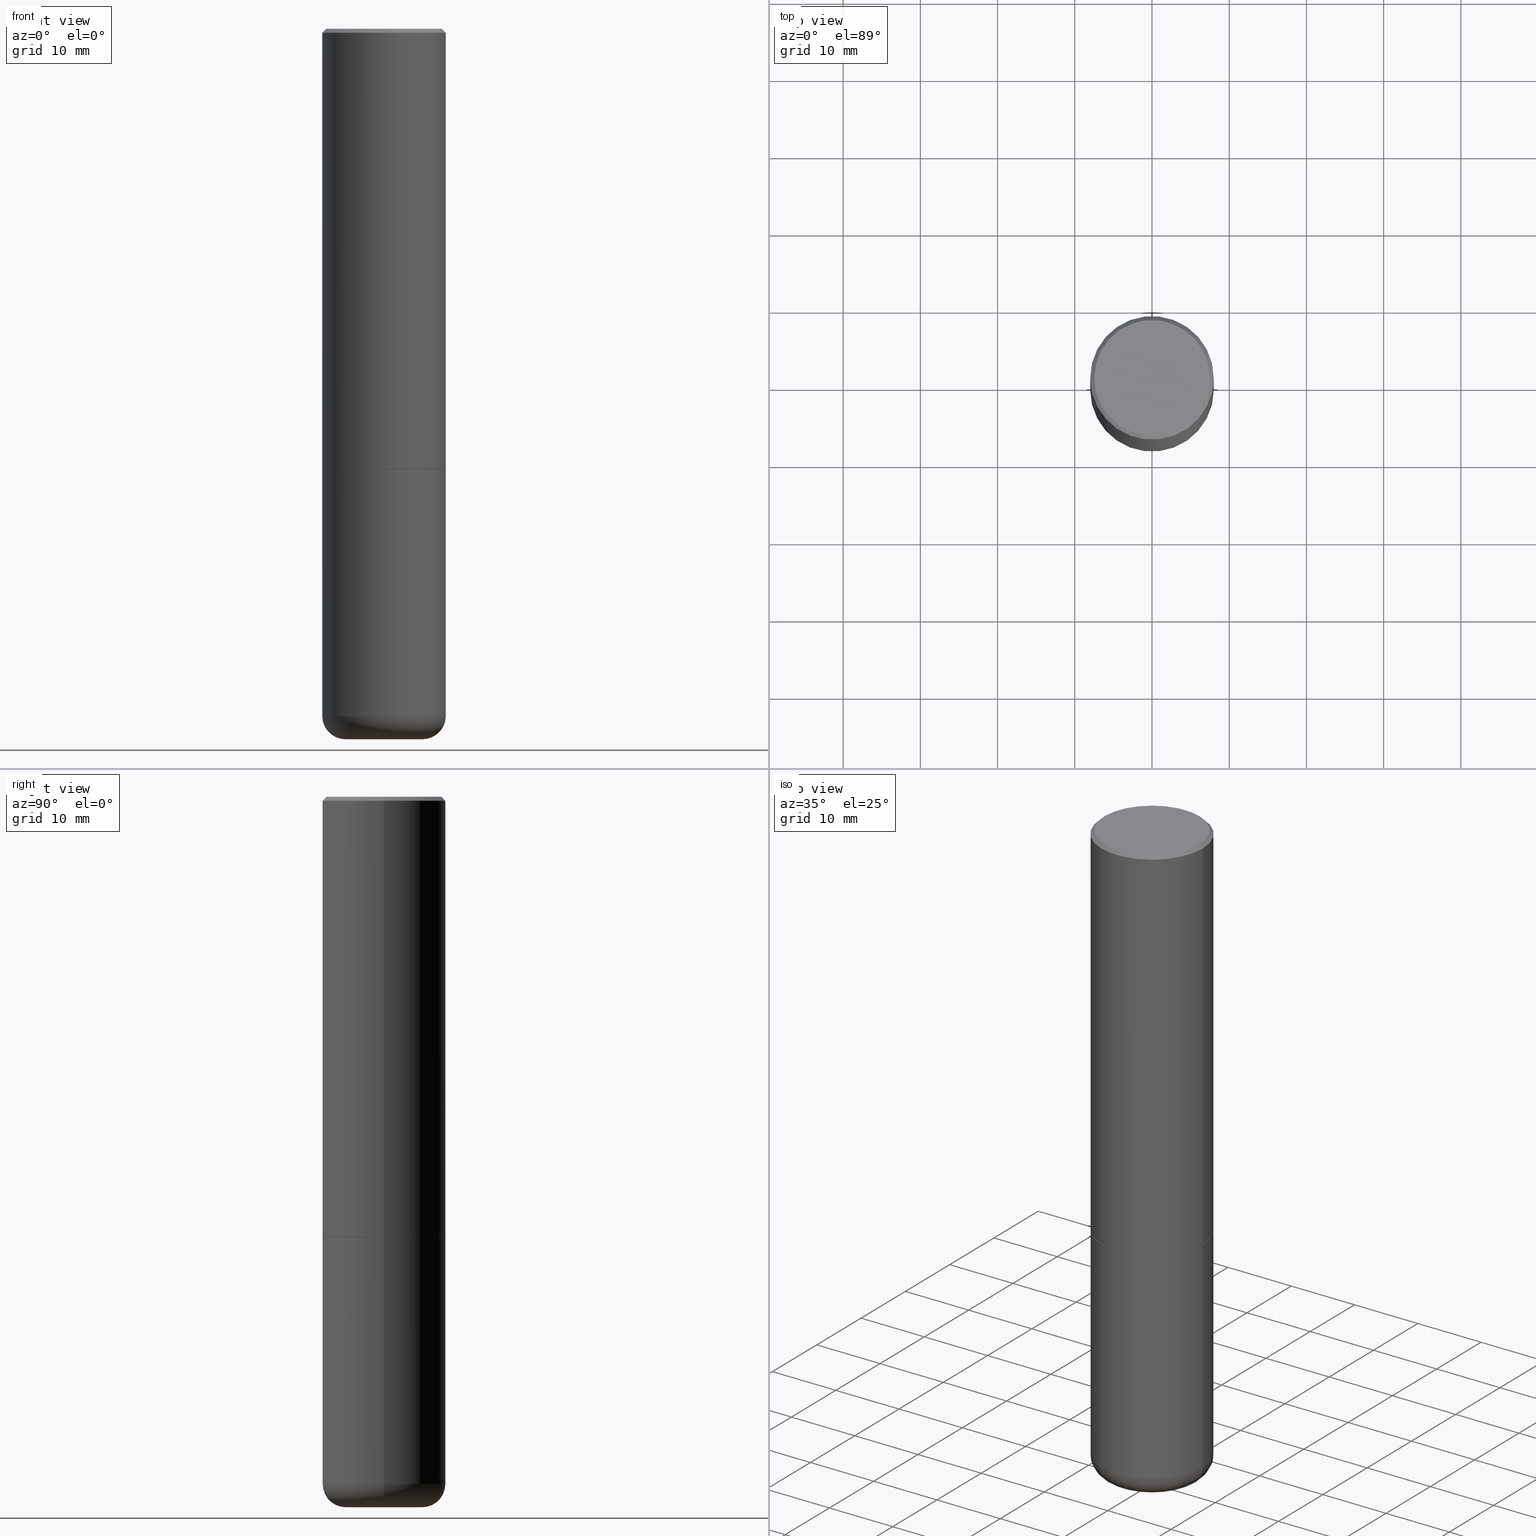
[diagram: canonical four-view strip — front | top / right | iso, engineering-drawing reading convention]
A machine part, canonical four-view strip (front | top / right | iso — engineering-drawing reading convention). The complete STEP part file that produces these views, byte-faithful:
ISO-10303-21;
HEADER;
FILE_DESCRIPTION (( 'STEP AP203' ),
    '1' );
FILE_NAME ('47037.STEP',
    '2024-03-05T13:49:01',
    ( '' ),
    ( '' ),
    'SwSTEP 2.0',
    'SolidWorks 2023',
    '' );
FILE_SCHEMA (( 'CONFIG_CONTROL_DESIGN' ));
ENDSEC;

DATA;
#1 = DIRECTION ( 'NONE',  ( -2.445468806185136597E-29, 3.491481338843145583E-15, 1.000000000000000000 ) ) ;
#2 = CC_DESIGN_DATE_AND_TIME_ASSIGNMENT ( #24, #348, ( #248 ) ) ;
#3 = APPROVAL_PERSON_ORGANIZATION ( #255, #86, #289 ) ;
#4 = VERTEX_POINT ( 'NONE', #196 ) ;
#5 = CC_DESIGN_PERSON_AND_ORGANIZATION_ASSIGNMENT ( #228, #197, ( #248 ) ) ;
#6 = AXIS2_PLACEMENT_3D ( 'NONE', #169, #200, #406 ) ;
#7 = PRODUCT_DEFINITION_FORMATION_WITH_SPECIFIED_SOURCE ( 'ANY', '', #140, .NOT_KNOWN. ) ;
#8 = PLANE ( 'NONE',  #97 ) ;
#9 = CARTESIAN_POINT ( 'NONE',  ( 0.3149500000000000077, -2.199284095337289871E-15, 1.535751875536930130E-29 ) ) ;
#10 = DIRECTION ( 'NONE',  ( 1.000000000000000000, -6.982962677686266711E-15, 4.876176775795936353E-29 ) ) ;
#11 = ORIENTED_EDGE ( 'NONE', *, *, #123, .F. ) ;
#12 = CLOSED_SHELL ( 'NONE', ( #138, #320, #334, #46, #198, #217 ) ) ;
#13 = CARTESIAN_POINT ( 'NONE',  ( -0.3149500000000001743, 2.237854346276436774E-15, -1.549218606675783237E-29 ) ) ;
#14 = CARTESIAN_POINT ( 'NONE',  ( 5.485186532273261485E-29, -7.831392643025175821E-15, -2.242999999999999883 ) ) ;
#15 = ORIENTED_EDGE ( 'NONE', *, *, #99, .F. ) ;
#16 = CARTESIAN_POINT ( 'NONE',  ( 5.487632001079445967E-29, -7.834884124364017250E-15, -2.243999999999999773 ) ) ;
#17 = DIRECTION ( 'NONE',  ( 2.445468806185136597E-29, -3.491481338843145583E-15, -1.000000000000000000 ) ) ;
#18 = CLOSED_SHELL ( 'NONE', ( #30, #111, #136, #116, #204, #38, #69, #143 ) ) ;
#19 = CARTESIAN_POINT ( 'NONE',  ( 5.487632001079445967E-29, -7.834884124364017250E-15, -2.243999999999999773 ) ) ;
#20 = CARTESIAN_POINT ( 'NONE',  ( 5.487632001079445967E-29, -7.834884124364017250E-15, -2.243999999999999773 ) ) ;
#21 = APPROVAL_DATE_TIME ( #287, #86 ) ;
#22 = ORIENTED_EDGE ( 'NONE', *, *, #330, .F. ) ;
#23 = CARTESIAN_POINT ( 'NONE',  ( 5.487632001079445967E-29, -7.834884124364017250E-15, -2.243999999999999773 ) ) ;
#24 = DATE_AND_TIME ( #319, #382 ) ;
#25 = EDGE_CURVE ( 'NONE', #179, #51, #277, .T. ) ;
#26 = DIRECTION ( 'NONE',  ( -2.445468806185136597E-29, 3.491481338843145583E-15, 1.000000000000000000 ) ) ;
#27 = VECTOR ( 'NONE', #187, 39.37007874015748143 ) ;
#28 = ORIENTED_EDGE ( 'NONE', *, *, #177, .T. ) ;
#29 = CARTESIAN_POINT ( 'NONE',  ( 0.3139500000000000068, -1.002718525702362111E-14, -2.243999999999999773 ) ) ;
#30 = ADVANCED_FACE ( 'NONE', ( #160 ), #360, .T. ) ;
#31 = DIRECTION ( 'NONE',  ( -2.445468806185136597E-29, 3.491481338843145583E-15, 1.000000000000000000 ) ) ;
#32 = CC_DESIGN_PERSON_AND_ORGANIZATION_ASSIGNMENT ( #370, #159, ( #7 ) ) ;
#33 = LENGTH_MEASURE_WITH_UNIT ( LENGTH_MEASURE( 0.02539999999999999897 ), #98 );
#34 = APPROVAL_ROLE ( '' ) ;
#35 = VECTOR ( 'NONE', #251, 39.37007874015748143 ) ;
#36 = ORIENTED_EDGE ( 'NONE', *, *, #273, .F. ) ;
#37 = ORIENTED_EDGE ( 'NONE', *, *, #296, .F. ) ;
#38 = ADVANCED_FACE ( 'NONE', ( #411 ), #347, .T. ) ;
#39 = CARTESIAN_POINT ( 'NONE',  ( 0.000000000000000000, 0.000000000000000000, 0.000000000000000000 ) ) ;
#40 = AXIS2_PLACEMENT_3D ( 'NONE', #324, #31, #318 ) ;
#41 = DIRECTION ( 'NONE',  ( 1.000000000000000000, -6.982962677686265922E-15, 4.876176775795935232E-29 ) ) ;
#42 = DIRECTION ( 'NONE',  ( 0.000000000000000000, 0.000000000000000000, 1.000000000000000000 ) ) ;
#43 = ORIENTED_EDGE ( 'NONE', *, *, #104, .F. ) ;
#44 = DIRECTION ( 'NONE',  ( 1.000000000000000000, -6.982962677686266711E-15, 0.000000000000000000 ) ) ;
#45 = CARTESIAN_POINT ( 'NONE',  ( 4.890937612370289799E-31, -6.982962677686315028E-17, -0.02000000000000006981 ) ) ;
#46 = ADVANCED_FACE ( 'NONE', ( #207 ), #327, .T. ) ;
#47 = DIRECTION ( 'NONE',  ( 1.000000000000000000, -6.982962677686267499E-15, 0.000000000000000000 ) ) ;
#48 = ORIENTED_EDGE ( 'NONE', *, *, #25, .F. ) ;
#49 = VECTOR ( 'NONE', #336, 39.37007874015748143 ) ;
#50 = CARTESIAN_POINT ( 'NONE',  ( -0.3149499999999998967, -9.995947116896063452E-15, -3.503899999999999793 ) ) ;
#51 = VERTEX_POINT ( 'NONE', #135 ) ;
#52 = ORIENTED_EDGE ( 'NONE', *, *, #297, .F. ) ;
#53 = ORIENTED_EDGE ( 'NONE', *, *, #188, .T. ) ;
#54 = AXIS2_PLACEMENT_3D ( 'NONE', #23, #1, #163 ) ;
#55 = EDGE_LOOP ( 'NONE', ( #331, #396, #205, #223 ) ) ;
#56 = PLANE ( 'NONE',  #388 ) ;
#57 = CARTESIAN_POINT ( 'NONE',  ( 8.568678149992099474E-29, -1.223380146317249786E-14, -3.503899999999999793 ) ) ;
#58 = VERTEX_POINT ( 'NONE', #269 ) ;
#59 = FACE_OUTER_BOUND ( 'NONE', #141, .T. ) ;
#60 = CIRCLE ( 'NONE', #257, 0.3149500000000000077 ) ;
#61 = VERTEX_POINT ( 'NONE', #385 ) ;
#62 = DIRECTION ( 'NONE',  ( 1.000000000000000000, -6.982962677686267499E-15, 4.874125435057324435E-29 ) ) ;
#63 = CIRCLE ( 'NONE', #132, 0.3149500000000002853 ) ;
#64 = CIRCLE ( 'NONE', #54, 0.3139500000000000068 ) ;
#65 = EDGE_LOOP ( 'NONE', ( #298, #232, #399, #37 ) ) ;
#66 = PLANE ( 'NONE',  #101 ) ;
#67 = APPROVAL_ROLE ( '' ) ;
#68 = PRODUCT_DEFINITION_SHAPE ( 'NONE', 'NONE',  #238 ) ;
#69 = ADVANCED_FACE ( 'NONE', ( #102 ), #66, .F. ) ;
#70 = AXIS2_PLACEMENT_3D ( 'NONE', #192, #312, #286 ) ;
#71 = CARTESIAN_POINT ( 'NONE',  ( 0.3149500000000001743, -2.199284095337290660E-15, 1.535751875536930690E-29 ) ) ;
#72 = CARTESIAN_POINT ( 'NONE',  ( 4.890937612370289799E-31, -6.982962677686315028E-17, -0.02000000000000006981 ) ) ;
#73 = ADVANCED_BREP_SHAPE_REPRESENTATION ( '47037', ( #408, #134, #285 ), #258 ) ;
#74 = ORIENTED_EDGE ( 'NONE', *, *, #297, .T. ) ;
#75 = DIRECTION ( 'NONE',  ( 2.438088387897960049E-29, -3.491481338843145188E-15, -1.000000000000000000 ) ) ;
#76 = LINE ( 'NONE', #84, #35 ) ;
#77 = CARTESIAN_POINT ( 'NONE',  ( 0.3139500000000000068, -1.002718525702362111E-14, -2.243999999999999773 ) ) ;
#78 = DIRECTION ( 'NONE',  ( -2.445468806185136597E-29, 3.491481338843145583E-15, 1.000000000000000000 ) ) ;
#79 = VECTOR ( 'NONE', #114, 39.37007874015748143 ) ;
#80 = ORIENTED_EDGE ( 'NONE', *, *, #177, .F. ) ;
#81 = CIRCLE ( 'NONE', #292, 0.3149500000000000077 ) ;
#82 = DIRECTION ( 'NONE',  ( 1.000000000000000000, -6.982962677686265922E-15, 4.876176775795935793E-29 ) ) ;
#83 = ORIENTED_EDGE ( 'NONE', *, *, #267, .F. ) ;
#84 = CARTESIAN_POINT ( 'NONE',  ( -0.3149500000000000077, 2.129454468560426573E-15, -0.02000000000000006981 ) ) ;
#85 = EDGE_LOOP ( 'NONE', ( #392, #164 ) ) ;
#86 = APPROVAL ( #377, 'UNSPECIFIED' ) ;
#87 = LOCAL_TIME ( 8, 49, 1.000000000000000000, #231 ) ;
#88 = EDGE_CURVE ( 'NONE', #51, #202, #172, .T. ) ;
#89 = PERSON_AND_ORGANIZATION_ROLE ( 'creator' ) ;
#90 = ORIENTED_EDGE ( 'NONE', *, *, #273, .T. ) ;
#91 = FACE_OUTER_BOUND ( 'NONE', #349, .T. ) ;
#92 = DIRECTION ( 'NONE',  ( 1.000000000000000000, -6.982962677686269866E-15, 4.883557194083114022E-29 ) ) ;
#93 = SHAPE_DEFINITION_REPRESENTATION ( #68, #73 ) ;
#94 = PRODUCT_RELATED_PRODUCT_CATEGORY ( 'detail', '', ( #140 ) ) ;
#95 = ORIENTED_EDGE ( 'NONE', *, *, #304, .T. ) ;
#96 = CARTESIAN_POINT ( 'NONE',  ( -4.384175940207923203E-45, 6.259441315597878405E-31, 1.792775245842172799E-16 ) ) ;
#97 = AXIS2_PLACEMENT_3D ( 'NONE', #361, #75, #181 ) ;
#98 =( LENGTH_UNIT ( ) NAMED_UNIT ( * ) SI_UNIT ( $, .METRE. ) );
#99 = EDGE_CURVE ( 'NONE', #272, #61, #340, .T. ) ;
#100 = ORIENTED_EDGE ( 'NONE', *, *, #384, .T. ) ;
#101 = AXIS2_PLACEMENT_3D ( 'NONE', #333, #145, #82 ) ;
#102 = FACE_OUTER_BOUND ( 'NONE', #129, .T. ) ;
#103 = DIRECTION ( 'NONE',  ( 1.000000000000000000, 0.000000000000000000, 0.000000000000000000 ) ) ;
#104 = EDGE_CURVE ( 'NONE', #58, #190, #60, .T. ) ;
#105 = APPLICATION_PROTOCOL_DEFINITION ( 'international standard', 'config_control_design', 1994, #256 ) ;
#106 = DIRECTION ( 'NONE',  ( -2.445468806185136597E-29, 3.491481338843145583E-15, 1.000000000000000000 ) ) ;
#107 = AXIS2_PLACEMENT_3D ( 'NONE', #117, #250, #121 ) ;
#108 = ORIENTED_EDGE ( 'NONE', *, *, #304, .F. ) ;
#109 = CARTESIAN_POINT ( 'NONE',  ( -0.2949499999999998234, 2.094539655171995318E-15, 1.792775245842027353E-16 ) ) ;
#110 = DIRECTION ( 'NONE',  ( 1.000000000000000000, -6.982962677686266711E-15, 0.000000000000000000 ) ) ;
#111 = ADVANCED_FACE ( 'NONE', ( #368 ), #310, .T. ) ;
#112 = ORIENTED_EDGE ( 'NONE', *, *, #193, .T. ) ;
#113 = ORIENTED_EDGE ( 'NONE', *, *, #174, .T. ) ;
#114 = DIRECTION ( 'NONE',  ( -2.445468806185136877E-29, 3.491481338843145188E-15, 1.000000000000000000 ) ) ;
#115 = AXIS2_PLACEMENT_3D ( 'NONE', #184, #182, #10 ) ;
#116 = ADVANCED_FACE ( 'NONE', ( #410 ), #264, .T. ) ;
#117 = CARTESIAN_POINT ( 'NONE',  ( 5.487632001079445967E-29, -7.834884124364017250E-15, -2.243999999999999773 ) ) ;
#118 = CARTESIAN_POINT ( 'NONE',  ( -0.1968500000000000250, -1.083509808782873928E-14, -3.503899999999999793 ) ) ;
#119 = ORIENTED_EDGE ( 'NONE', *, *, #188, .F. ) ;
#120 = CALENDAR_DATE ( 2024, 5, 3 ) ;
#121 = DIRECTION ( 'NONE',  ( 1.000000000000000000, -6.982962677686264344E-15, 0.000000000000000000 ) ) ;
#122 = CARTESIAN_POINT ( 'NONE',  ( 5.487632001079445967E-29, -7.834884124364017250E-15, -2.243999999999999773 ) ) ;
#123 = EDGE_CURVE ( 'NONE', #225, #58, #247, .T. ) ;
#124 = DATE_TIME_ROLE ( 'creation_date' ) ;
#125 = TOROIDAL_SURFACE ( 'NONE', #178, 0.1968500000000000250, 0.1180999999999997468 ) ;
#126 = TOROIDAL_SURFACE ( 'NONE', #393, 0.1968500000000000250, 0.1180999999999997468 ) ;
#127 = CARTESIAN_POINT ( 'NONE',  ( 8.568678149992099474E-29, -1.223380146317249786E-14, -3.503899999999999793 ) ) ;
#128 = DIRECTION ( 'NONE',  ( -2.445468806185136597E-29, 3.491481338843145583E-15, 1.000000000000000000 ) ) ;
#129 = EDGE_LOOP ( 'NONE', ( #149, #173 ) ) ;
#130 = LINE ( 'NONE', #203, #300 ) ;
#131 = CARTESIAN_POINT ( 'NONE',  ( 0.3149499999999998967, -1.443308555850978615E-14, -3.503899999999999793 ) ) ;
#132 = AXIS2_PLACEMENT_3D ( 'NONE', #14, #213, #240 ) ;
#133 = LOCAL_TIME ( 8, 49, 1.000000000000000000, #358 ) ;
#134 = MANIFOLD_SOLID_BREP ( 'Body-Move/Copy2[2]', #18 ) ;
#135 = CARTESIAN_POINT ( 'NONE',  ( 0.1968500000000000250, -1.402074161239241202E-14, -3.621999999999999442 ) ) ;
#136 = ADVANCED_FACE ( 'NONE', ( #194 ), #372, .T. ) ;
#137 = ORGANIZATION ( 'UNSPECIFIED', 'UNSPECIFIED', '' ) ;
#138 = ADVANCED_FACE ( 'NONE', ( #281 ), #395, .T. ) ;
#139 = ORIENTED_EDGE ( 'NONE', *, *, #104, .T. ) ;
#140 = PRODUCT ( '47037', '47037', '', ( #275 ) ) ;
#141 = EDGE_LOOP ( 'NONE', ( #74, #113, #214, #244 ) ) ;
#142 = CARTESIAN_POINT ( 'NONE',  ( 0.2949499999999998234, -2.127023677808859286E-15, 1.792775245842319231E-16 ) ) ;
#143 = ADVANCED_FACE ( 'NONE', ( #362 ), #314, .F. ) ;
#144 = DIRECTION ( 'NONE',  ( 1.000000000000000000, -6.982962677686267499E-15, 0.000000000000000000 ) ) ;
#145 = DIRECTION ( 'NONE',  ( -2.438088387897960049E-29, 3.491481338843145188E-15, 1.000000000000000000 ) ) ;
#146 = CIRCLE ( 'NONE', #353, 0.3149500000000000077 ) ;
#147 = DIRECTION ( 'NONE',  ( 1.000000000000000000, -6.982962677686263555E-15, 0.000000000000000000 ) ) ;
#148 = DIRECTION ( 'NONE',  ( 1.000000000000000000, -6.982962677686266711E-15, 0.000000000000000000 ) ) ;
#149 = ORIENTED_EDGE ( 'NONE', *, *, #363, .F. ) ;
#150 = DIRECTION ( 'NONE',  ( 0.7071067811865466846, -7.319954787623252890E-15, -0.7071067811865483499 ) ) ;
#151 = PERSON ( 'UNSPECIFIED', 'UNSPECIFIED', 'UNSPECIFIED', ('UNSPECIFIED'), ('UNSPECIFIED'), ('UNSPECIFIED') ) ;
#152 = DIRECTION ( 'NONE',  ( 2.445468806185136597E-29, -3.491481338843145583E-15, -1.000000000000000000 ) ) ;
#153 = ORIENTED_EDGE ( 'NONE', *, *, #267, .T. ) ;
#154 = CC_DESIGN_PERSON_AND_ORGANIZATION_ASSIGNMENT ( #374, #89, ( #7 ) ) ;
#155 = CC_DESIGN_SECURITY_CLASSIFICATION ( #248, ( #7 ) ) ;
#156 = EDGE_LOOP ( 'NONE', ( #359, #237, #15, #36 ) ) ;
#157 = DIRECTION ( 'NONE',  ( -1.000000000000000000, 7.105427357601005014E-15, 0.000000000000000000 ) ) ;
#158 = ORIENTED_EDGE ( 'NONE', *, *, #241, .F. ) ;
#159 = PERSON_AND_ORGANIZATION_ROLE ( 'design_supplier' ) ;
#160 = FACE_OUTER_BOUND ( 'NONE', #156, .T. ) ;
#161 = DIRECTION ( 'NONE',  ( -2.445468806185136877E-29, 3.491481338843145188E-15, 1.000000000000000000 ) ) ;
#162 = CALENDAR_DATE ( 2024, 5, 3 ) ;
#163 = DIRECTION ( 'NONE',  ( 1.000000000000000000, -6.982962677686264344E-15, 0.000000000000000000 ) ) ;
#164 = ORIENTED_EDGE ( 'NONE', *, *, #403, .T. ) ;
#165 = COORDINATED_UNIVERSAL_TIME_OFFSET ( 5, 0, .BEHIND. ) ;
#166 = AXIS2_PLACEMENT_3D ( 'NONE', #222, #152, #282 ) ;
#167 = DIRECTION ( 'NONE',  ( -0.7071067811866199593, 7.493145998870616062E-15, 0.7071067811864750752 ) ) ;
#168 = UNCERTAINTY_MEASURE_WITH_UNIT (LENGTH_MEASURE( 1.000000000000000082E-05 ), #209, 'distance_accuracy_value', 'NONE');
#169 = CARTESIAN_POINT ( 'NONE',  ( 5.487632001079445967E-29, -7.834884124364017250E-15, -2.243999999999999773 ) ) ;
#170 = DATE_AND_TIME ( #262, #416 ) ;
#171 = PERSON_AND_ORGANIZATION ( #151, #137 ) ;
#172 = CIRCLE ( 'NONE', #404, 0.1180999999999997191 ) ;
#173 = ORIENTED_EDGE ( 'NONE', *, *, #366, .F. ) ;
#174 = EDGE_CURVE ( 'NONE', #179, #303, #270, .T. ) ;
#175 = CYLINDRICAL_SURFACE ( 'NONE', #355, 0.3149500000000001743 ) ;
#176 = CARTESIAN_POINT ( 'NONE',  ( 0.000000000000000000, 0.000000000000000000, 0.000000000000000000 ) ) ;
#177 = EDGE_CURVE ( 'NONE', #301, #190, #76, .T. ) ;
#178 = AXIS2_PLACEMENT_3D ( 'NONE', #57, #128, #92 ) ;
#179 = VERTEX_POINT ( 'NONE', #375 ) ;
#180 = EDGE_LOOP ( 'NONE', ( #52, #48 ) ) ;
#181 = DIRECTION ( 'NONE',  ( -1.000000000000000000, 6.982962677686265922E-15, -4.876176775795935793E-29 ) ) ;
#182 = DIRECTION ( 'NONE',  ( -2.445468806185136597E-29, 3.491481338843145583E-15, 1.000000000000000000 ) ) ;
#183 = LINE ( 'NONE', #13, #27 ) ;
#184 = CARTESIAN_POINT ( 'NONE',  ( 0.000000000000000000, 0.000000000000000000, 0.000000000000000000 ) ) ;
#185 = AXIS2_PLACEMENT_3D ( 'NONE', #176, #208, #261 ) ;
#186 = CC_DESIGN_APPROVAL ( #86, ( #7 ) ) ;
#187 = DIRECTION ( 'NONE',  ( -2.445468806185136877E-29, 3.491481338843145188E-15, 1.000000000000000000 ) ) ;
#188 = EDGE_CURVE ( 'NONE', #61, #272, #63, .T. ) ;
#189 = CARTESIAN_POINT ( 'NONE',  ( 5.485186532273261485E-29, -7.831392643025175821E-15, -2.242999999999999883 ) ) ;
#190 = VERTEX_POINT ( 'NONE', #224 ) ;
#191 = CARTESIAN_POINT ( 'NONE',  ( 0.3149500000000000077, -1.003416821970130712E-14, -2.243999999999999773 ) ) ;
#192 = CARTESIAN_POINT ( 'NONE',  ( 0.000000000000000000, 0.000000000000000000, 0.000000000000000000 ) ) ;
#193 = EDGE_CURVE ( 'NONE', #235, #338, #146, .T. ) ;
#194 = FACE_OUTER_BOUND ( 'NONE', #369, .T. ) ;
#195 = DATE_AND_TIME ( #162, #133 ) ;
#196 = CARTESIAN_POINT ( 'NONE',  ( -0.3139500000000000068, -5.598836751096959871E-15, -2.243999999999999773 ) ) ;
#197 = PERSON_AND_ORGANIZATION_ROLE ( 'classification_officer' ) ;
#198 = ADVANCED_FACE ( 'NONE', ( #398 ), #125, .T. ) ;
#199 = LINE ( 'NONE', #414, #315 ) ;
#200 = DIRECTION ( 'NONE',  ( -2.445468806185136597E-29, 3.491481338843145583E-15, 1.000000000000000000 ) ) ;
#201 = DIRECTION ( 'NONE',  ( -1.000000000000000000, 6.982962677686265922E-15, -4.876176775795935793E-29 ) ) ;
#202 = VERTEX_POINT ( 'NONE', #131 ) ;
#203 = CARTESIAN_POINT ( 'NONE',  ( -0.3139500000000000068, -5.604135205445183851E-15, -2.243999999999999773 ) ) ;
#204 = ADVANCED_FACE ( 'NONE', ( #328 ), #175, .T. ) ;
#205 = ORIENTED_EDGE ( 'NONE', *, *, #88, .T. ) ;
#206 = COORDINATED_UNIVERSAL_TIME_OFFSET ( 5, 0, .BEHIND. ) ;
#207 = FACE_OUTER_BOUND ( 'NONE', #216, .T. ) ;
#208 = DIRECTION ( 'NONE',  ( -2.445468806185136597E-29, 3.491481338843145583E-15, 1.000000000000000000 ) ) ;
#209 =( CONVERSION_BASED_UNIT ( 'INCH', #33 ) LENGTH_UNIT ( ) NAMED_UNIT ( #329 ) );
#210 = AXIS2_PLACEMENT_3D ( 'NONE', #16, #246, #350 ) ;
#211 = CIRCLE ( 'NONE', #220, 0.2949499999999998234 ) ;
#212 = LINE ( 'NONE', #77, #49 ) ;
#213 = DIRECTION ( 'NONE',  ( -2.445468806185136597E-29, 3.491481338843145583E-15, 1.000000000000000000 ) ) ;
#214 = ORIENTED_EDGE ( 'NONE', *, *, #254, .F. ) ;
#215 = DIRECTION ( 'NONE',  ( -2.445468806185136597E-29, 3.491481338843145583E-15, 1.000000000000000000 ) ) ;
#216 = EDGE_LOOP ( 'NONE', ( #22, #100, #316, #108 ) ) ;
#217 = ADVANCED_FACE ( 'NONE', ( #354 ), #8, .T. ) ;
#218 = AXIS2_PLACEMENT_3D ( 'NONE', #189, #302, #47 ) ;
#219 = CC_DESIGN_APPROVAL ( #332, ( #248 ) ) ;
#220 = AXIS2_PLACEMENT_3D ( 'NONE', #96, #352, #325 ) ;
#221 = CARTESIAN_POINT ( 'NONE',  ( 4.890937612370289799E-31, -6.982962677686315028E-17, -0.02000000000000006981 ) ) ;
#222 = CARTESIAN_POINT ( 'NONE',  ( 4.890937612370289799E-31, -6.982962677686315028E-17, -0.02000000000000006981 ) ) ;
#223 = ORIENTED_EDGE ( 'NONE', *, *, #384, .F. ) ;
#224 = CARTESIAN_POINT ( 'NONE',  ( -0.3149500000000000077, 2.129454468560426573E-15, -0.02000000000000006981 ) ) ;
#225 = VERTEX_POINT ( 'NONE', #142 ) ;
#226 = DIRECTION ( 'NONE',  ( -2.445468806185136597E-29, 3.491481338843145583E-15, 1.000000000000000000 ) ) ;
#227 = AXIS2_PLACEMENT_3D ( 'NONE', #72, #17, #337 ) ;
#228 = PERSON_AND_ORGANIZATION ( #151, #137 ) ;
#229 = CARTESIAN_POINT ( 'NONE',  ( -0.3149500000000000077, -7.796488447491823147E-15, -2.243999999999999773 ) ) ;
#230 = APPROVAL ( #306, 'UNSPECIFIED' ) ;
#231 = COORDINATED_UNIVERSAL_TIME_OFFSET ( 5, 0, .BEHIND. ) ;
#232 = ORIENTED_EDGE ( 'NONE', *, *, #330, .T. ) ;
#233 = DIRECTION ( 'NONE',  ( 1.000000000000000000, -6.982962677686264344E-15, 0.000000000000000000 ) ) ;
#234 = AXIS2_PLACEMENT_3D ( 'NONE', #307, #341, #144 ) ;
#235 = VERTEX_POINT ( 'NONE', #191 ) ;
#236 = VECTOR ( 'NONE', #280, 39.37007874015748143 ) ;
#237 = ORIENTED_EDGE ( 'NONE', *, *, #383, .T. ) ;
#238 = PRODUCT_DEFINITION ( 'UNKNOWN', '', #7, #288 ) ;
#239 = ORIENTED_EDGE ( 'NONE', *, *, #290, .T. ) ;
#240 = DIRECTION ( 'NONE',  ( 1.000000000000000000, -6.982962677686267499E-15, 0.000000000000000000 ) ) ;
#241 = EDGE_CURVE ( 'NONE', #61, #190, #183, .T. ) ;
#242 = ORIENTED_EDGE ( 'NONE', *, *, #123, .T. ) ;
#243 = DIRECTION ( 'NONE',  ( -6.982962677686266711E-15, -1.000000000000000000, 3.491481338843145583E-15 ) ) ;
#244 = ORIENTED_EDGE ( 'NONE', *, *, #88, .F. ) ;
#245 = CC_DESIGN_DATE_AND_TIME_ASSIGNMENT ( #252, #124, ( #238 ) ) ;
#246 = DIRECTION ( 'NONE',  ( -2.445468806185136597E-29, 3.491481338843145583E-15, 1.000000000000000000 ) ) ;
#247 = LINE ( 'NONE', #343, #313 ) ;
#248 = SECURITY_CLASSIFICATION ( '', '', #413 ) ;
#249 = APPROVAL_DATE_TIME ( #195, #230 ) ;
#250 = DIRECTION ( 'NONE',  ( -2.445468806185136597E-29, 3.491481338843145583E-15, 1.000000000000000000 ) ) ;
#251 = DIRECTION ( 'NONE',  ( -0.7071067811865466846, 2.468850131082247989E-15, -0.7071067811865483499 ) ) ;
#252 = DATE_AND_TIME ( #120, #379 ) ;
#253 = EDGE_LOOP ( 'NONE', ( #11, #335, #28, #239 ) ) ;
#254 = EDGE_CURVE ( 'NONE', #202, #303, #378, .T. ) ;
#255 = PERSON_AND_ORGANIZATION ( #151, #137 ) ;
#256 = APPLICATION_CONTEXT ( 'configuration controlled 3d designs of mechanical parts and assemblies' ) ;
#257 = AXIS2_PLACEMENT_3D ( 'NONE', #45, #78, #110 ) ;
#258 =( GEOMETRIC_REPRESENTATION_CONTEXT ( 3 ) GLOBAL_UNCERTAINTY_ASSIGNED_CONTEXT ( ( #168 ) ) GLOBAL_UNIT_ASSIGNED_CONTEXT ( ( #209, #268, #356 ) ) REPRESENTATION_CONTEXT ( 'NONE', 'WORKASPACE' ) );
#259 = PERSON_AND_ORGANIZATION_ROLE ( 'creator' ) ;
#260 = CARTESIAN_POINT ( 'NONE',  ( -4.384175940207923203E-45, 6.259441315597878405E-31, 1.792775245842172799E-16 ) ) ;
#261 = DIRECTION ( 'NONE',  ( 1.000000000000000000, -6.982962677686266711E-15, 4.876176775795936353E-29 ) ) ;
#262 = CALENDAR_DATE ( 2024, 5, 3 ) ;
#263 = DIRECTION ( 'NONE',  ( 1.000000000000000000, -6.982962677686263555E-15, 0.000000000000000000 ) ) ;
#264 = CONICAL_SURFACE ( 'NONE', #227, 0.3149500000000000077, 0.7853981633974471688 ) ;
#265 = CIRCLE ( 'NONE', #405, 0.2949499999999998234 ) ;
#266 = CARTESIAN_POINT ( 'NONE',  ( 0.000000000000000000, 0.000000000000000000, 0.000000000000000000 ) ) ;
#267 = EDGE_CURVE ( 'NONE', #272, #58, #311, .T. ) ;
#268 =( NAMED_UNIT ( * ) PLANE_ANGLE_UNIT ( ) SI_UNIT ( $, .RADIAN. ) );
#269 = CARTESIAN_POINT ( 'NONE',  ( 0.3149500000000000077, -2.230543471175007450E-15, -0.02000000000000006981 ) ) ;
#270 = CIRCLE ( 'NONE', #291, 0.1180999999999997191 ) ;
#271 = PERSON_AND_ORGANIZATION_ROLE ( 'design_owner' ) ;
#272 = VERTEX_POINT ( 'NONE', #401 ) ;
#273 = EDGE_CURVE ( 'NONE', #376, #272, #212, .T. ) ;
#274 = CARTESIAN_POINT ( 'NONE',  ( 8.568678149992099474E-29, -1.223380146317249786E-14, -3.503899999999999793 ) ) ;
#275 = MECHANICAL_CONTEXT ( 'NONE', #256, 'mechanical' ) ;
#276 = PERSON_AND_ORGANIZATION ( #151, #137 ) ;
#277 = CIRCLE ( 'NONE', #40, 0.1968500000000000250 ) ;
#278 = CIRCLE ( 'NONE', #342, 0.3139500000000000068 ) ;
#279 = CARTESIAN_POINT ( 'NONE',  ( 0.1968500000000000250, -1.360839766627503947E-14, -3.503899999999999793 ) ) ;
#280 = DIRECTION ( 'NONE',  ( -2.445468806185136877E-29, 3.491481338843145188E-15, 1.000000000000000000 ) ) ;
#281 = FACE_OUTER_BOUND ( 'NONE', #65, .T. ) ;
#282 = DIRECTION ( 'NONE',  ( -1.000000000000000000, 6.982962677686266711E-15, 0.000000000000000000 ) ) ;
#283 = CIRCLE ( 'NONE', #210, 0.3149500000000000077 ) ;
#284 = DIRECTION ( 'NONE',  ( 2.438088387897960049E-29, -3.491481338843145188E-15, -1.000000000000000000 ) ) ;
#285 = AXIS2_PLACEMENT_3D ( 'NONE', #39, #42, #103 ) ;
#286 = DIRECTION ( 'NONE',  ( 1.000000000000000000, -6.982962677686265922E-15, 4.876176775795935232E-29 ) ) ;
#287 = DATE_AND_TIME ( #321, #87 ) ;
#288 = DESIGN_CONTEXT ( 'detailed design', #389, 'design' ) ;
#289 = APPROVAL_ROLE ( '' ) ;
#290 = EDGE_CURVE ( 'NONE', #190, #58, #387, .T. ) ;
#291 = AXIS2_PLACEMENT_3D ( 'NONE', #118, #373, #157 ) ;
#292 = AXIS2_PLACEMENT_3D ( 'NONE', #294, #418, #263 ) ;
#293 = PERSON_AND_ORGANIZATION ( #151, #137 ) ;
#294 = CARTESIAN_POINT ( 'NONE',  ( 8.568678149992099474E-29, -1.223380146317249786E-14, -3.503899999999999793 ) ) ;
#295 = APPROVAL_DATE_TIME ( #170, #332 ) ;
#296 = EDGE_CURVE ( 'NONE', #202, #235, #397, .T. ) ;
#297 = EDGE_CURVE ( 'NONE', #51, #179, #322, .T. ) ;
#298 = ORIENTED_EDGE ( 'NONE', *, *, #254, .T. ) ;
#299 = AXIS2_PLACEMENT_3D ( 'NONE', #365, #284, #402 ) ;
#300 = VECTOR ( 'NONE', #167, 39.37007874015748143 ) ;
#301 = VERTEX_POINT ( 'NONE', #109 ) ;
#302 = DIRECTION ( 'NONE',  ( -2.445468806185136597E-29, 3.491481338843145583E-15, 1.000000000000000000 ) ) ;
#303 = VERTEX_POINT ( 'NONE', #50 ) ;
#304 = EDGE_CURVE ( 'NONE', #338, #235, #283, .T. ) ;
#305 = APPROVAL_PERSON_ORGANIZATION ( #276, #230, #67 ) ;
#306 = APPROVAL_STATUS ( 'not_yet_approved' ) ;
#307 = CARTESIAN_POINT ( 'NONE',  ( 8.857488016002563354E-29, -1.264614540928987041E-14, -3.621999999999999442 ) ) ;
#308 = CC_DESIGN_PERSON_AND_ORGANIZATION_ASSIGNMENT ( #317, #259, ( #238 ) ) ;
#309 = ORIENTED_EDGE ( 'NONE', *, *, #403, .F. ) ;
#310 = CYLINDRICAL_SURFACE ( 'NONE', #70, 0.3149500000000001743 ) ;
#311 = LINE ( 'NONE', #71, #236 ) ;
#312 = DIRECTION ( 'NONE',  ( -2.445468806185136597E-29, 3.491481338843145583E-15, 1.000000000000000000 ) ) ;
#313 = VECTOR ( 'NONE', #150, 39.37007874015748143 ) ;
#314 = PLANE ( 'NONE',  #299 ) ;
#315 = VECTOR ( 'NONE', #161, 39.37007874015748143 ) ;
#316 = ORIENTED_EDGE ( 'NONE', *, *, #296, .T. ) ;
#317 = PERSON_AND_ORGANIZATION ( #151, #137 ) ;
#318 = DIRECTION ( 'NONE',  ( 1.000000000000000000, -6.982962677686267499E-15, 0.000000000000000000 ) ) ;
#319 = CALENDAR_DATE ( 2024, 5, 3 ) ;
#320 = ADVANCED_FACE ( 'NONE', ( #59 ), #126, .T. ) ;
#321 = CALENDAR_DATE ( 2024, 5, 3 ) ;
#322 = CIRCLE ( 'NONE', #234, 0.1968500000000000250 ) ;
#323 = APPROVAL_PERSON_ORGANIZATION ( #293, #332, #34 ) ;
#324 = CARTESIAN_POINT ( 'NONE',  ( 8.857488016002563354E-29, -1.264614540928987041E-14, -3.621999999999999442 ) ) ;
#325 = DIRECTION ( 'NONE',  ( 1.000000000000000000, -6.982962677686267499E-15, 4.874125435057324435E-29 ) ) ;
#326 = EDGE_LOOP ( 'NONE', ( #158, #53, #153, #367 ) ) ;
#327 = CYLINDRICAL_SURFACE ( 'NONE', #185, 0.3149500000000000077 ) ;
#328 = FACE_OUTER_BOUND ( 'NONE', #326, .T. ) ;
#329 = DIMENSIONAL_EXPONENTS ( 1.000000000000000000, 0.000000000000000000, 0.000000000000000000, 0.000000000000000000, 0.000000000000000000, 0.000000000000000000, 0.000000000000000000 ) ;
#330 = EDGE_CURVE ( 'NONE', #303, #338, #199, .T. ) ;
#331 = ORIENTED_EDGE ( 'NONE', *, *, #174, .F. ) ;
#332 = APPROVAL ( #417, 'UNSPECIFIED' ) ;
#333 = CARTESIAN_POINT ( 'NONE',  ( 5.487632001079445967E-29, -7.834884124364017250E-15, -2.243999999999999773 ) ) ;
#334 = ADVANCED_FACE ( 'NONE', ( #91 ), #56, .F. ) ;
#335 = ORIENTED_EDGE ( 'NONE', *, *, #371, .F. ) ;
#336 = DIRECTION ( 'NONE',  ( 0.7071067811866199593, -2.468850131083015945E-15, 0.7071067811864750752 ) ) ;
#337 = DIRECTION ( 'NONE',  ( -1.000000000000000000, 6.982962677686266711E-15, 0.000000000000000000 ) ) ;
#338 = VERTEX_POINT ( 'NONE', #229 ) ;
#339 = EDGE_LOOP ( 'NONE', ( #344, #400, #90, #119 ) ) ;
#340 = CIRCLE ( 'NONE', #218, 0.3149500000000002853 ) ;
#341 = DIRECTION ( 'NONE',  ( -2.445468806185136597E-29, 3.491481338843145583E-15, 1.000000000000000000 ) ) ;
#342 = AXIS2_PLACEMENT_3D ( 'NONE', #122, #26, #233 ) ;
#343 = CARTESIAN_POINT ( 'NONE',  ( 0.3149500000000000077, -2.230543471175007450E-15, -0.02000000000000006981 ) ) ;
#344 = ORIENTED_EDGE ( 'NONE', *, *, #383, .F. ) ;
#345 = EDGE_LOOP ( 'NONE', ( #351, #364, #43, #83 ) ) ;
#346 = DIRECTION ( 'NONE',  ( 1.000000000000000000, -6.982962677686269866E-15, 4.883557194083114022E-29 ) ) ;
#347 = CONICAL_SURFACE ( 'NONE', #107, 0.3139500000000000068, 0.7853981633975507526 ) ;
#348 = DATE_TIME_ROLE ( 'classification_date' ) ;
#349 = EDGE_LOOP ( 'NONE', ( #112, #95 ) ) ;
#350 = DIRECTION ( 'NONE',  ( 1.000000000000000000, -6.982962677686266711E-15, 0.000000000000000000 ) ) ;
#351 = ORIENTED_EDGE ( 'NONE', *, *, #99, .T. ) ;
#352 = DIRECTION ( 'NONE',  ( -2.445468806185136597E-29, 3.491481338843145583E-15, 1.000000000000000000 ) ) ;
#353 = AXIS2_PLACEMENT_3D ( 'NONE', #20, #215, #148 ) ;
#354 = FACE_OUTER_BOUND ( 'NONE', #180, .T. ) ;
#355 = AXIS2_PLACEMENT_3D ( 'NONE', #266, #391, #41 ) ;
#356 =( NAMED_UNIT ( * ) SI_UNIT ( $, .STERADIAN. ) SOLID_ANGLE_UNIT ( ) );
#357 = CC_DESIGN_APPROVAL ( #230, ( #238 ) ) ;
#358 = COORDINATED_UNIVERSAL_TIME_OFFSET ( 5, 0, .BEHIND. ) ;
#359 = ORIENTED_EDGE ( 'NONE', *, *, #363, .T. ) ;
#360 = CONICAL_SURFACE ( 'NONE', #6, 0.3139500000000000068, 0.7853981633975507526 ) ;
#361 = CARTESIAN_POINT ( 'NONE',  ( 1.587752295914809676E-28, -2.593055815129891410E-15, -3.621999999999999886 ) ) ;
#362 = FACE_OUTER_BOUND ( 'NONE', #85, .T. ) ;
#363 = EDGE_CURVE ( 'NONE', #376, #4, #278, .T. ) ;
#364 = ORIENTED_EDGE ( 'NONE', *, *, #241, .T. ) ;
#365 = CARTESIAN_POINT ( 'NONE',  ( 2.059624841783562880E-15, 0.2949499999999998234, -9.401736585996764239E-16 ) ) ;
#366 = EDGE_CURVE ( 'NONE', #4, #376, #64, .T. ) ;
#367 = ORIENTED_EDGE ( 'NONE', *, *, #290, .F. ) ;
#368 = FACE_OUTER_BOUND ( 'NONE', #345, .T. ) ;
#369 = EDGE_LOOP ( 'NONE', ( #309, #242, #139, #80 ) ) ;
#370 = PERSON_AND_ORGANIZATION ( #151, #137 ) ;
#371 = EDGE_CURVE ( 'NONE', #301, #225, #265, .T. ) ;
#372 = CONICAL_SURFACE ( 'NONE', #166, 0.3149500000000000077, 0.7853981633974471688 ) ;
#373 = DIRECTION ( 'NONE',  ( 7.105427357601001859E-15, 1.000000000000000000, -3.491481338843145583E-15 ) ) ;
#374 = PERSON_AND_ORGANIZATION ( #151, #137 ) ;
#375 = CARTESIAN_POINT ( 'NONE',  ( -0.1968500000000000250, -1.062169457542108764E-14, -3.621999999999999442 ) ) ;
#376 = VERTEX_POINT ( 'NONE', #29 ) ;
#377 = APPROVAL_STATUS ( 'not_yet_approved' ) ;
#378 = CIRCLE ( 'NONE', #415, 0.3149500000000000077 ) ;
#379 = LOCAL_TIME ( 8, 49, 1.000000000000000000, #409 ) ;
#380 = DIRECTION ( 'NONE',  ( -2.445468806185136597E-29, 3.491481338843145583E-15, 1.000000000000000000 ) ) ;
#381 = CC_DESIGN_PERSON_AND_ORGANIZATION_ASSIGNMENT ( #171, #271, ( #140 ) ) ;
#382 = LOCAL_TIME ( 8, 49, 1.000000000000000000, #165 ) ;
#383 = EDGE_CURVE ( 'NONE', #4, #61, #130, .T. ) ;
#384 = EDGE_CURVE ( 'NONE', #303, #202, #81, .T. ) ;
#385 = CARTESIAN_POINT ( 'NONE',  ( -0.3149500000000002853, -1.712756788624580222E-15, -2.242999999999999883 ) ) ;
#386 = AXIS2_PLACEMENT_3D ( 'NONE', #221, #394, #44 ) ;
#387 = CIRCLE ( 'NONE', #386, 0.3149500000000000077 ) ;
#388 = AXIS2_PLACEMENT_3D ( 'NONE', #19, #412, #201 ) ;
#389 = APPLICATION_CONTEXT ( 'configuration controlled 3d designs of mechanical parts and assemblies' ) ;
#390 = APPLICATION_PROTOCOL_DEFINITION ( 'international standard', 'config_control_design', 1994, #389 ) ;
#391 = DIRECTION ( 'NONE',  ( -2.445468806185136597E-29, 3.491481338843145583E-15, 1.000000000000000000 ) ) ;
#392 = ORIENTED_EDGE ( 'NONE', *, *, #371, .T. ) ;
#393 = AXIS2_PLACEMENT_3D ( 'NONE', #127, #226, #346 ) ;
#394 = DIRECTION ( 'NONE',  ( -2.445468806185136597E-29, 3.491481338843145583E-15, 1.000000000000000000 ) ) ;
#395 = CYLINDRICAL_SURFACE ( 'NONE', #115, 0.3149500000000000077 ) ;
#396 = ORIENTED_EDGE ( 'NONE', *, *, #25, .T. ) ;
#397 = LINE ( 'NONE', #9, #79 ) ;
#398 = FACE_OUTER_BOUND ( 'NONE', #55, .T. ) ;
#399 = ORIENTED_EDGE ( 'NONE', *, *, #193, .F. ) ;
#400 = ORIENTED_EDGE ( 'NONE', *, *, #366, .T. ) ;
#401 = CARTESIAN_POINT ( 'NONE',  ( 0.3149500000000002853, -1.003067673836246727E-14, -2.242999999999999883 ) ) ;
#402 = DIRECTION ( 'NONE',  ( -1.000000000000000000, 6.982962677686265922E-15, -4.876176775795935793E-29 ) ) ;
#403 = EDGE_CURVE ( 'NONE', #225, #301, #211, .T. ) ;
#404 = AXIS2_PLACEMENT_3D ( 'NONE', #279, #243, #407 ) ;
#405 = AXIS2_PLACEMENT_3D ( 'NONE', #260, #380, #62 ) ;
#406 = DIRECTION ( 'NONE',  ( 1.000000000000000000, -6.982962677686264344E-15, 0.000000000000000000 ) ) ;
#407 = DIRECTION ( 'NONE',  ( 1.000000000000000000, -6.982962677686273021E-15, 0.000000000000000000 ) ) ;
#408 = MANIFOLD_SOLID_BREP ( 'Body-Move/Copy2[1]', #12 ) ;
#409 = COORDINATED_UNIVERSAL_TIME_OFFSET ( 5, 0, .BEHIND. ) ;
#410 = FACE_OUTER_BOUND ( 'NONE', #253, .T. ) ;
#411 = FACE_OUTER_BOUND ( 'NONE', #339, .T. ) ;
#412 = DIRECTION ( 'NONE',  ( 2.438088387897960049E-29, -3.491481338843145188E-15, -1.000000000000000000 ) ) ;
#413 = SECURITY_CLASSIFICATION_LEVEL ( 'unclassified' ) ;
#414 = CARTESIAN_POINT ( 'NONE',  ( -0.3149500000000000077, 2.237854346276435590E-15, -1.549218606675782676E-29 ) ) ;
#415 = AXIS2_PLACEMENT_3D ( 'NONE', #274, #106, #147 ) ;
#416 = LOCAL_TIME ( 8, 49, 1.000000000000000000, #206 ) ;
#417 = APPROVAL_STATUS ( 'not_yet_approved' ) ;
#418 = DIRECTION ( 'NONE',  ( -2.445468806185136597E-29, 3.491481338843145583E-15, 1.000000000000000000 ) ) ;
ENDSEC;
END-ISO-10303-21;
